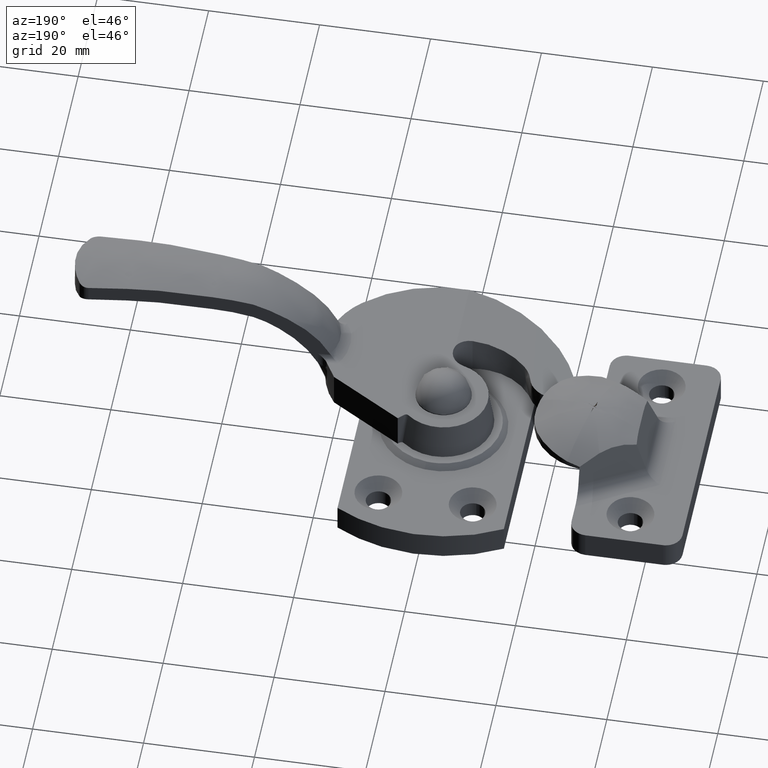
[diagram: clean part render]
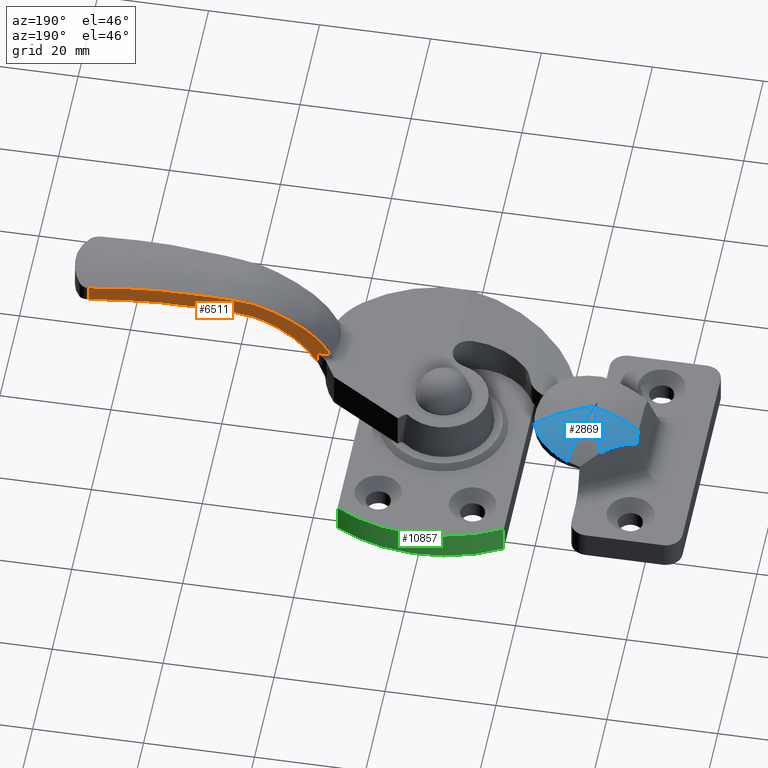
[diagram: same view with three faces highlighted in distinct colors, each labeled with its STEP entity id]
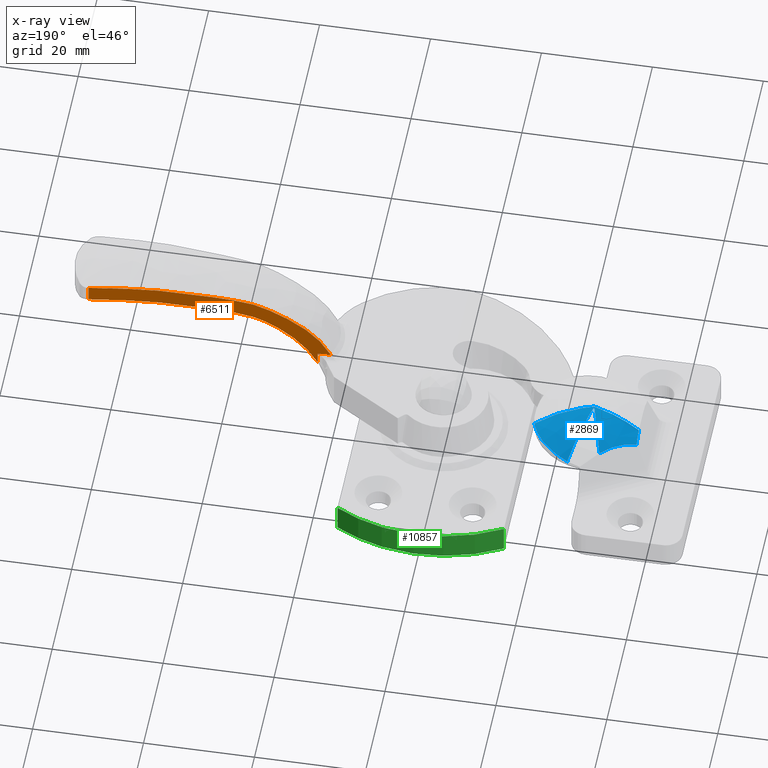
[diagram: x-ray of the same camera — body ghosted, the three highlighted faces saturated]
A machine part, auxiliary view with three faces highlighted in distinct colors.
The next image is the same camera in x-ray (body ghosted, the three faces saturated) — at least one of them is partly hidden behind the body in this view.
Their STEP definitions:

[orange] entity #6511 — the highlighted face is a freeform B-spline surface patch.
#4731=CARTESIAN_POINT('',(-64.544098295849992,3.056130984262790,22.335307416231998));
#4732=VERTEX_POINT('',#4731);
#4751=CARTESIAN_POINT('',(-64.544098295849992,3.056130984262790,25.240552649991500));
#4752=VERTEX_POINT('',#4751);
#4753=CARTESIAN_POINT('',(-64.544098295849992,3.056130984262790,25.240552649991500));
#4754=CARTESIAN_POINT('',(-64.544098295849992,3.056130984262790,22.335307416231998));
#4755=QUASI_UNIFORM_CURVE('',1,(#4753,#4754),.UNSPECIFIED.,.F.,.U.);
#4756=EDGE_CURVE('',#4752,#4732,#4755,.T.);
#4942=CARTESIAN_POINT('',(-21.294990060552301,5.356656109721390,13.600000000000300));
#4943=VERTEX_POINT('',#4942);
#4973=CARTESIAN_POINT('',(-23.628802869014301,5.232514937266021,13.600000000000120));
#4974=VERTEX_POINT('',#4973);
#4975=CARTESIAN_POINT('',(-23.628802869014301,5.232514937266021,13.600000000000120));
#4976=CARTESIAN_POINT('',(-21.294990060552301,5.356656109721390,13.600000000000300));
#4977=QUASI_UNIFORM_CURVE('',1,(#4975,#4976),.UNSPECIFIED.,.F.,.U.);
#4978=EDGE_CURVE('',#4974,#4943,#4977,.T.);
#5301=CARTESIAN_POINT('',(-21.432751211222449,5.349328259471500,13.834116143274541));
#5302=VERTEX_POINT('',#5301);
#5338=CARTESIAN_POINT('',(-21.294990060552301,5.356656109721390,13.600000000000300));
#5339=CARTESIAN_POINT('',(-21.320498952374368,5.355299229799925,13.637150231054120));
#5340=CARTESIAN_POINT('',(-21.344910624181100,5.354000713676376,13.675415990220440));
#5341=CARTESIAN_POINT('',(-21.390957911613540,5.351551346600992,13.753584045904450));
#5342=CARTESIAN_POINT('',(-21.412580870877122,5.350401168871801,13.793446467238031));
#5343=CARTESIAN_POINT('',(-21.432751211222449,5.349328259471500,13.834116143274541));
#5344=B_SPLINE_CURVE_WITH_KNOTS('',3,(#5338,#5339,#5340,#5341,#5342,#5343),.UNSPECIFIED.,.F.,.U.,(4,2,4),(0.0,0.500000000000000,1.0),.UNSPECIFIED.);
#5345=EDGE_CURVE('',#4943,#5302,#5344,.T.);
#5416=CARTESIAN_POINT('',(-23.628846639430151,5.232512609010580,11.369820057790800));
#5417=VERTEX_POINT('',#5416);
#5418=CARTESIAN_POINT('',(-23.628846639430151,5.232512609010580,11.369820057790800));
#5419=CARTESIAN_POINT('',(-23.628802869014301,5.232514937266021,13.600000000000120));
#5420=QUASI_UNIFORM_CURVE('',1,(#5418,#5419),.UNSPECIFIED.,.F.,.U.);
#5421=EDGE_CURVE('',#5417,#4974,#5420,.T.);
#6198=CARTESIAN_POINT('',(-52.0,3.723382044072050,23.099999999999699));
#6199=VERTEX_POINT('',#6198);
#6200=CARTESIAN_POINT('',(-64.544098295849992,3.056130984262790,22.335307416231998));
#6201=CARTESIAN_POINT('',(-61.723036834008717,3.206190096189800,22.614947073720639));
#6202=CARTESIAN_POINT('',(-60.006375147837787,3.297503501300025,22.749871624268408));
#6203=CARTESIAN_POINT('',(-55.563189712271537,3.533847327766312,23.099092908067981));
#6204=CARTESIAN_POINT('',(-52.0,3.723382044072050,23.099999999999699));
#6205=B_SPLINE_CURVE_WITH_KNOTS('',2,(#6200,#6201,#6202,#6203,#6204),.UNSPECIFIED.,.F.,.U.,(3,2,3),(0.0,0.322009686741718,0.822009686741718),.UNSPECIFIED.);
#6206=EDGE_CURVE('',#4732,#6199,#6205,.T.);
#6268=CARTESIAN_POINT('',(-30.669493444000349,4.858003502711720,19.256115468632949));
#6269=VERTEX_POINT('',#6268);
#6270=CARTESIAN_POINT('',(-30.669493444000349,4.858003502711720,19.256115468632949));
#6271=CARTESIAN_POINT('',(-28.255405624991418,4.986414697978021,17.617674302440982));
#6272=CARTESIAN_POINT('',(-26.425387321331680,5.083757816932564,15.534139359646121));
#6273=CARTESIAN_POINT('',(-24.707705774190970,5.175125470925403,13.578503442287010));
#6274=CARTESIAN_POINT('',(-23.628846639430151,5.232512609010580,11.369820057790800));
#6275=B_SPLINE_CURVE_WITH_KNOTS('',2,(#6270,#6271,#6272,#6273,#6274),.UNSPECIFIED.,.F.,.U.,(3,2,3),(0.050480646505041,0.550480646505041,1.000000000000000),.UNSPECIFIED.);
#6276=EDGE_CURVE('',#6269,#5417,#6275,.T.);
#6278=CARTESIAN_POINT('',(-35.159835288962313,4.619151312279820,21.529036773812450));
#6279=VERTEX_POINT('',#6278);
#6280=CARTESIAN_POINT('',(-35.159835288962313,4.619151312279820,21.529036773812450));
#6281=CARTESIAN_POINT('',(-32.976669350221698,4.735279211791694,20.821774991816142));
#6282=CARTESIAN_POINT('',(-30.669493444000349,4.858003502711720,19.256115468632949));
#6283=QUASI_UNIFORM_CURVE('',2,(#6280,#6281,#6282),.UNSPECIFIED.,.F.,.U.);
#6284=EDGE_CURVE('',#6279,#6269,#6283,.T.);
#6286=CARTESIAN_POINT('',(-38.811311880026537,4.424920402429395,22.285201131640051));
#6287=VERTEX_POINT('',#6286);
#6288=CARTESIAN_POINT('',(-38.811311880026537,4.424920402429445,22.285201131640068));
#6289=CARTESIAN_POINT('',(-36.620485531659320,4.541455777737365,22.002060124550479));
#6290=CARTESIAN_POINT('',(-35.159835288962313,4.619151312279820,21.529036773812450));
#6291=QUASI_UNIFORM_CURVE('',2,(#6288,#6289,#6290),.UNSPECIFIED.,.F.,.U.);
#6292=EDGE_CURVE('',#6287,#6279,#6291,.T.);
#6294=CARTESIAN_POINT('',(-42.438739729215548,4.231968703577249,22.646418643501448));
#6295=VERTEX_POINT('',#6294);
#6296=CARTESIAN_POINT('',(-42.438739729215548,4.231968703577249,22.646418643501448));
#6297=CARTESIAN_POINT('',(-40.206181960088877,4.350723874527084,22.465430097365900));
#6298=CARTESIAN_POINT('',(-38.811311880026551,4.424920402429445,22.285201131640068));
#6299=QUASI_UNIFORM_CURVE('',2,(#6296,#6297,#6298),.UNSPECIFIED.,.F.,.U.);
#6300=EDGE_CURVE('',#6295,#6287,#6299,.T.);
#6302=CARTESIAN_POINT('',(-51.999999999999993,3.723382044071988,23.099999999999710));
#6303=CARTESIAN_POINT('',(-48.051873284572203,3.933392494643876,23.101431433225351));
#6304=CARTESIAN_POINT('',(-42.438739729215548,4.231968703577249,22.646418643501448));
#6305=QUASI_UNIFORM_CURVE('',2,(#6302,#6303,#6304),.UNSPECIFIED.,.F.,.U.);
#6306=EDGE_CURVE('',#6199,#6295,#6305,.T.);
#6420=CARTESIAN_POINT('',(-52.0,3.723382044071925,26.100000000000001));
#6421=VERTEX_POINT('',#6420);
#6422=CARTESIAN_POINT('',(-64.544098295849992,3.056130984262790,25.240552649991500));
#6423=CARTESIAN_POINT('',(-61.709817803424301,3.206893248537519,25.540883569339002));
#6424=CARTESIAN_POINT('',(-59.988553667178628,3.298451469147228,25.688626997781110));
#6425=CARTESIAN_POINT('',(-55.542491826189973,3.534948298605101,26.070251413012389));
#6426=CARTESIAN_POINT('',(-52.0,3.723382044071925,26.100000000000001));
#6427=B_SPLINE_CURVE_WITH_KNOTS('',2,(#6422,#6423,#6424,#6425,#6426),.UNSPECIFIED.,.F.,.U.,(3,2,3),(0.177471127821122,0.500000000000000,1.0),.UNSPECIFIED.);
#6428=EDGE_CURVE('',#4752,#6421,#6427,.T.);
#6430=CARTESIAN_POINT('',(-42.438739729213751,4.231968703577235,25.659559201621850));
#6431=VERTEX_POINT('',#6430);
#6432=CARTESIAN_POINT('',(-52.0,3.723382044071925,26.100000000000001));
#6433=CARTESIAN_POINT('',(-47.619026071708070,3.956416689344773,26.137261221304321));
#6434=CARTESIAN_POINT('',(-42.438739729213751,4.231968703577235,25.659559201621850));
#6435=QUASI_UNIFORM_CURVE('',2,(#6432,#6433,#6434),.UNSPECIFIED.,.F.,.U.);
#6436=EDGE_CURVE('',#6421,#6431,#6435,.T.);
#6438=CARTESIAN_POINT('',(-38.811311880028200,4.424920402429180,25.310353361521798));
#6439=VERTEX_POINT('',#6438);
#6440=CARTESIAN_POINT('',(-42.438739729213751,4.231968703577235,25.659559201621850));
#6441=CARTESIAN_POINT('',(-38.811311880028200,4.424920402429180,25.310353361521798));
#6442=QUASI_UNIFORM_CURVE('',1,(#6440,#6441),.UNSPECIFIED.,.F.,.U.);
#6443=EDGE_CURVE('',#6431,#6439,#6442,.T.);
#6445=CARTESIAN_POINT('',(-35.159835288962000,4.619151312312740,24.694953307694199));
#6446=VERTEX_POINT('',#6445);
#6447=CARTESIAN_POINT('',(-38.811311880028200,4.424920402429180,25.310353361521798));
#6448=CARTESIAN_POINT('',(-37.568822375685762,4.491011437353769,25.199022911464869));
#6449=CARTESIAN_POINT('',(-37.072670470181770,4.517402962433216,25.126615199944730));
#6450=CARTESIAN_POINT('',(-36.087076033479207,4.569829124674756,24.982778933557480));
#6451=CARTESIAN_POINT('',(-35.159835288962000,4.619151312312740,24.694953307694199));
#6452=B_SPLINE_CURVE_WITH_KNOTS('',2,(#6447,#6448,#6449,#6450,#6451),.UNSPECIFIED.,.F.,.U.,(3,2,3),(0.0,0.500000000000000,1.0),.UNSPECIFIED.);
#6453=EDGE_CURVE('',#6439,#6446,#6452,.T.);
#6455=CARTESIAN_POINT('',(-29.003659364571849,4.946613263951490,21.751109821294850));
#6456=VERTEX_POINT('',#6455);
#6457=CARTESIAN_POINT('',(-35.159835288962000,4.619151312312740,24.694953307694199));
#6458=CARTESIAN_POINT('',(-33.834530617240432,4.689647487127513,24.283443886962129));
#6459=CARTESIAN_POINT('',(-32.131443045947513,4.780238852094014,23.460756258328939));
#6460=CARTESIAN_POINT('',(-30.530245544534498,4.865410436737681,22.687287296653139));
#6461=CARTESIAN_POINT('',(-29.003659364571849,4.946613263951490,21.751109821294850));
#6462=B_SPLINE_CURVE_WITH_KNOTS('',2,(#6457,#6458,#6459,#6460,#6461),.UNSPECIFIED.,.F.,.U.,(3,2,3),(0.0,0.500000000000000,1.0),.UNSPECIFIED.);
#6463=EDGE_CURVE('',#6446,#6456,#6462,.T.);
#6465=CARTESIAN_POINT('',(-29.003659364571849,4.946613263951490,21.751109821294850));
#6466=CARTESIAN_POINT('',(-27.366581748642840,5.033693399043764,20.747114283722180));
#6467=CARTESIAN_POINT('',(-26.096849307083389,5.101233551976151,19.703614224017951));
#6468=CARTESIAN_POINT('',(-24.825659929037020,5.168851202899388,18.658916814965671));
#6469=CARTESIAN_POINT('',(-23.831216648098788,5.221748056660686,17.499037689295839));
#6470=CARTESIAN_POINT('',(-22.854470051146581,5.273703580812931,16.359799272595989));
#6471=CARTESIAN_POINT('',(-22.073205185430052,5.315260956827022,15.024653172620500));
#6472=CARTESIAN_POINT('',(-21.741530296825470,5.332903549838716,14.457835882591640));
#6473=CARTESIAN_POINT('',(-21.432751211222449,5.349328259471500,13.834116143274541));
#6474=B_SPLINE_CURVE_WITH_KNOTS('',2,(#6465,#6466,#6467,#6468,#6469,#6470,#6471,#6472,#6473),.UNSPECIFIED.,.F.,.U.,(3,2,2,2,3),(0.0,0.250000000000000,0.500000000000000,0.750000000000000,0.860469404966954),.UNSPECIFIED.);
#6475=EDGE_CURVE('',#6456,#5302,#6474,.T.);
#6488=CARTESIAN_POINT('',(-66.704390762386438,2.941219780303619,10.633912538750771));
#6489=CARTESIAN_POINT('',(-19.134696047307429,5.471567395957210,10.633912538750771));
#6490=CARTESIAN_POINT('',(-66.704390762386254,2.941219780300165,26.838603106249849));
#6491=CARTESIAN_POINT('',(-19.134696047307241,5.471567395953755,26.838603106249849));
#6492=B_SPLINE_SURFACE_WITH_KNOTS('',1,1,((#6488,#6490),(#6489,#6491)),.UNSPECIFIED.,.F.,.F.,.U.,(2,2),(2,2),(0.0,47.636944846850326),(0.0,16.204690567499082),.UNSPECIFIED.);
#6493=ORIENTED_EDGE('',*,*,#6428,.F.);
#6494=ORIENTED_EDGE('',*,*,#4756,.T.);
#6495=ORIENTED_EDGE('',*,*,#6206,.T.);
#6496=ORIENTED_EDGE('',*,*,#6306,.T.);
#6497=ORIENTED_EDGE('',*,*,#6300,.T.);
#6498=ORIENTED_EDGE('',*,*,#6292,.T.);
#6499=ORIENTED_EDGE('',*,*,#6284,.T.);
#6500=ORIENTED_EDGE('',*,*,#6276,.T.);
#6501=ORIENTED_EDGE('',*,*,#5421,.T.);
#6502=ORIENTED_EDGE('',*,*,#4978,.T.);
#6503=ORIENTED_EDGE('',*,*,#5345,.T.);
#6504=ORIENTED_EDGE('',*,*,#6475,.F.);
#6505=ORIENTED_EDGE('',*,*,#6463,.F.);
#6506=ORIENTED_EDGE('',*,*,#6453,.F.);
#6507=ORIENTED_EDGE('',*,*,#6443,.F.);
#6508=ORIENTED_EDGE('',*,*,#6436,.F.);
#6509=EDGE_LOOP('',(#6493,#6494,#6495,#6496,#6497,#6498,#6499,#6500,#6501,#6502,#6503,#6504,#6505,#6506,#6507,#6508));
#6510=FACE_OUTER_BOUND('',#6509,.T.);
#6511=ADVANCED_FACE('',(#6510),#6492,.T.);

[blue] entity #2869 — the highlighted face is a freeform B-spline surface patch.
#2413=CARTESIAN_POINT('',(18.365678131114400,-2.861039895896485,11.261993442719840));
#2414=VERTEX_POINT('',#2413);
#2509=CARTESIAN_POINT('',(25.677245148327948,-10.757284593454481,10.931948783105540));
#2510=VERTEX_POINT('',#2509);
#2520=CARTESIAN_POINT('',(18.365678131114400,-2.861039895896485,11.261993442719840));
#2521=CARTESIAN_POINT('',(18.483304585026669,-3.313673338012683,11.344063364204001));
#2522=CARTESIAN_POINT('',(18.627923176603961,-3.755949839157150,11.415053971642720));
#2523=CARTESIAN_POINT('',(18.970181074875189,-4.620243388056480,11.534596392387080));
#2524=CARTESIAN_POINT('',(19.167818673293560,-5.042259855563519,11.583158763522460));
#2525=CARTESIAN_POINT('',(19.505158622210999,-5.659703165067709,11.638377848142930));
#2526=CARTESIAN_POINT('',(19.624438315107000,-5.862913278894749,11.653839655628280));
#2527=CARTESIAN_POINT('',(19.813937464525260,-6.163700885495896,11.672435723474189));
#2528=CARTESIAN_POINT('',(19.878692407391370,-6.263002050292724,11.677847673356800));
#2529=CARTESIAN_POINT('',(20.010801978881130,-6.458860684491447,11.687060912507709));
#2530=CARTESIAN_POINT('',(20.078238655109139,-6.555549162315573,11.690870468515440));
#2531=CARTESIAN_POINT('',(20.422252280941908,-7.032858092294906,11.705962417226869));
#2532=CARTESIAN_POINT('',(20.719241508093660,-7.395148690099556,11.705425706607191));
#2533=CARTESIAN_POINT('',(21.356042114928709,-8.081265642669111,11.679106791051700));
#2534=CARTESIAN_POINT('',(21.695851542366398,-8.405093836288529,11.653329319455230));
#2535=CARTESIAN_POINT('',(22.148161520774369,-8.785125949970238,11.604511735195720));
#2536=CARTESIAN_POINT('',(22.239975216304341,-8.859852609939139,11.593914980365071));
#2537=CARTESIAN_POINT('',(22.424955578483932,-9.005692431042686,11.571213610549600));
#2538=CARTESIAN_POINT('',(22.518294114345359,-9.076952472959956,11.559091152045770));
#2539=CARTESIAN_POINT('',(22.800810247663659,-9.285834981114952,11.520431917131649));
#2540=CARTESIAN_POINT('',(22.992485922409610,-9.418564651897620,11.491605613234899));
#2541=CARTESIAN_POINT('',(23.577245447655041,-9.797648625366325,11.396065339295379));
#2542=CARTESIAN_POINT('',(23.980027374858121,-10.024965897628960,11.320323490414101));
#2543=CARTESIAN_POINT('',(24.603231411708681,-10.328402603739930,11.188393704987160));
#2544=CARTESIAN_POINT('',(24.814146710960070,-10.423274328456669,11.141355755081570));
#2545=CARTESIAN_POINT('',(25.135321481800549,-10.556087032101960,11.066100352625581));
#2546=CARTESIAN_POINT('',(25.243143796122759,-10.598754354630220,11.040238724301821));
#2547=CARTESIAN_POINT('',(25.459500701526672,-10.680578140359369,10.987152981929290));
#2548=CARTESIAN_POINT('',(25.568143183349552,-10.719780139081371,10.959903870999980));
#2549=CARTESIAN_POINT('',(25.677245148327948,-10.757284593454481,10.931948783105540));
#2550=B_SPLINE_CURVE_WITH_KNOTS('',3,(#2520,#2521,#2522,#2523,#2524,#2525,#2526,#2527,#2528,#2529,#2530,#2531,#2532,#2533,#2534,#2535,#2536,#2537,#2538,#2539,#2540,#2541,#2542,#2543,#2544,#2545,#2546,#2547,#2548,#2549),.UNSPECIFIED.,.F.,.U.,(4,2,2,2,2,2,2,2,2,2,2,2,2,2,4),(0.0,0.125000000000002,0.250000000000004,0.312500000000004,0.343750000000005,0.375000000000005,0.500000000000004,0.625000000000004,0.656250000000004,0.687500000000004,0.750000000000003,0.875000000000001,0.937500000000001,0.968750000000000,1.0),.UNSPECIFIED.);
#2551=EDGE_CURVE('',#2414,#2510,#2550,.T.);
#2556=CARTESIAN_POINT('',(39.356068860886921,-2.918670709395978,10.981369482162691));
#2557=CARTESIAN_POINT('',(38.504402206636072,-2.686442129324026,11.610141535423942));
#2558=CARTESIAN_POINT('',(37.608628151692329,-2.441966091733165,12.153902050780300));
#2559=CARTESIAN_POINT('',(35.796796010955084,-1.947420540586837,13.058053961696274));
#2560=CARTESIAN_POINT('',(34.875461591860180,-1.695861769219113,13.423118418207153));
#2561=CARTESIAN_POINT('',(33.005305967205700,-1.185241438298749,13.996342818822979));
#2562=CARTESIAN_POINT('',(32.056481386319824,-0.926129731835283,14.204333260063857));
#2563=CARTESIAN_POINT('',(30.613260765059771,-0.532048773469537,14.400879748070006));
#2564=CARTESIAN_POINT('',(30.128947832654209,-0.399791467991105,14.446958982186283));
#2565=CARTESIAN_POINT('',(29.402279621039739,-0.201493929107548,14.486545257097466));
#2566=CARTESIAN_POINT('',(29.160415580751188,-0.135225535146700,14.494841257900120));
#2567=CARTESIAN_POINT('',(28.855833742190690,-0.052976652184393,14.499095355866665));
#2568=CARTESIAN_POINT('',(28.796152241929533,-0.036129004742633,14.499641158792198));
#2569=CARTESIAN_POINT('',(28.715269227655863,-0.016971397066738,14.499938091133245));
#2570=CARTESIAN_POINT('',(28.698928066714526,-0.012791809665196,14.499980103392616));
#2571=CARTESIAN_POINT('',(28.658421463346578,-0.009145786198884,14.500010055081452));
#2572=CARTESIAN_POINT('',(28.637201671057671,-0.012549079495257,14.499985912058227));
#2573=CARTESIAN_POINT('',(28.586467311006629,-0.023147403066431,14.499858866564457));
#2574=CARTESIAN_POINT('',(28.556420395838167,-0.031423989302747,14.499696370555389));
#2575=CARTESIAN_POINT('',(28.403273821769545,-0.071785055274154,14.498508836016322));
#2576=CARTESIAN_POINT('',(28.283376305734393,-0.104800161390009,14.496350334397004));
#2577=CARTESIAN_POINT('',(27.198605586968217,-0.400204208983833,14.466054671744278));
#2578=CARTESIAN_POINT('',(26.238207345726863,-0.662927056929827,14.361833852670749));
#2579=CARTESIAN_POINT('',(24.337649920608865,-1.181884527959572,13.998776644171944));
#2580=CARTESIAN_POINT('',(23.396203276451406,-1.438970178549820,13.740122662836320));
#2581=CARTESIAN_POINT('',(21.532694441689213,-1.947738492681332,13.056299472250879));
#2582=CARTESIAN_POINT('',(20.625797316278462,-2.195326666604676,12.636703568188889));
#2583=CARTESIAN_POINT('',(18.866040826449385,-2.675579383429279,11.632786658964088));
#2584=CARTESIAN_POINT('',(18.012838182815820,-2.908386454568382,11.048656692166569));
#2585=CARTESIAN_POINT('',(17.191237847099544,-3.132339966430002,10.368876279927084));
#2586=CARTESIAN_POINT('',(39.342056381247488,-2.940258515172161,10.991672236613844));
#2587=CARTESIAN_POINT('',(38.490540051831410,-2.705902718509498,11.619044587288224));
#2588=CARTESIAN_POINT('',(37.595326040026727,-2.459410656281061,12.161374725575380));
#2589=CARTESIAN_POINT('',(35.785219876822623,-1.960980488331799,13.062926393514054));
#2590=CARTESIAN_POINT('',(34.865053174458581,-1.707565412761062,13.426828012641071));
#2591=CARTESIAN_POINT('',(32.997648189393608,-1.193283923581825,13.998141439693402));
#2592=CARTESIAN_POINT('',(32.050400490742113,-0.932387967330464,14.205398050535043));
#2593=CARTESIAN_POINT('',(30.609713918335149,-0.535628873769223,14.401240500185892));
#2594=CARTESIAN_POINT('',(30.126273736280801,-0.402479362797100,14.447152355993943));
#2595=CARTESIAN_POINT('',(29.400929107968281,-0.202847479449967,14.486594416786941));
#2596=CARTESIAN_POINT('',(29.159507831190723,-0.136133851469144,14.494860109524742));
#2597=CARTESIAN_POINT('',(28.855484392969895,-0.053332484886704,14.499098662357399));
#2598=CARTESIAN_POINT('',(28.795912349031692,-0.036371674018864,14.499642470410132));
#2599=CARTESIAN_POINT('',(28.715177690442143,-0.017085389220608,14.499938317409843));
#2600=CARTESIAN_POINT('',(28.698866503222042,-0.012877728648319,14.499980176173857));
#2601=CARTESIAN_POINT('',(28.658434199613357,-0.009207215815014,14.500010018271736));
#2602=CARTESIAN_POINT('',(28.637253330082881,-0.012633368067965,14.499985963530781));
#2603=CARTESIAN_POINT('',(28.586612028884897,-0.023302877966710,14.499859382462668));
#2604=CARTESIAN_POINT('',(28.556620224837218,-0.031635056341387,14.499697480343174));
#2605=CARTESIAN_POINT('',(28.403754518829544,-0.072267223338509,14.498514286050368));
#2606=CARTESIAN_POINT('',(28.284076803364108,-0.105504103452301,14.496363672816408));
#2607=CARTESIAN_POINT('',(27.201291066007137,-0.402892122276070,14.466178586289599));
#2608=CARTESIAN_POINT('',(26.242626271137006,-0.667378492149221,14.362338436487256));
#2609=CARTESIAN_POINT('',(24.345276991473291,-1.189914932235394,14.000561278250041));
#2610=CARTESIAN_POINT('',(23.405296696627371,-1.448803456193650,13.742796371428932));
#2611=CARTESIAN_POINT('',(21.544258477398341,-1.961314840167070,13.061165215380752));
#2612=CARTESIAN_POINT('',(20.638340953646704,-2.210791712130206,12.642837905948589));
#2613=CARTESIAN_POINT('',(18.879865139995580,-2.694966279300708,11.641608812831311));
#2614=CARTESIAN_POINT('',(18.026972342648374,-2.929780477229209,11.058883638181007));
#2615=CARTESIAN_POINT('',(17.205267180320359,-3.155893447297413,10.380435480225117));
#2616=CARTESIAN_POINT('',(36.296936183277097,-7.631609731406014,13.230613985771168));
#2617=CARTESIAN_POINT('',(35.528927881161600,-6.863605369517671,13.521157724017325));
#2618=CARTESIAN_POINT('',(34.795914110943571,-6.130596353753456,13.733989321613160));
#2619=CARTESIAN_POINT('',(33.409331428408279,-4.744027301695967,14.062945427425980));
#2620=CARTESIAN_POINT('',(32.750523482440101,-4.085227723886476,14.180453398057908));
#2621=CARTESIAN_POINT('',(31.466557315533180,-2.801292946856137,14.357756470036533));
#2622=CARTESIAN_POINT('',(30.841646166273669,-2.176393742743517,14.417056032531768));
#2623=CARTESIAN_POINT('',(29.908528476949812,-1.243388301713696,14.472558533143218));
#2624=CARTESIAN_POINT('',(29.598303481881420,-0.933173962518816,14.485331839511762));
#2625=CARTESIAN_POINT('',(29.134579416908242,-0.469796184465505,14.496289745458126));
#2626=CARTESIAN_POINT('',(28.980521830894386,-0.315231603361764,14.498577188594895));
#2627=CARTESIAN_POINT('',(28.786609437927847,-0.123485672345071,14.499750544162744));
#2628=CARTESIAN_POINT('',(28.748617664084911,-0.084213719655722,14.499901054796116));
#2629=CARTESIAN_POINT('',(28.697131354270738,-0.039558661518941,14.499982927283616));
#2630=CARTESIAN_POINT('',(28.686729426572583,-0.029816424653882,14.499994524801874));
#2631=CARTESIAN_POINT('',(28.660945118201308,-0.021317889026746,14.500002761340765));
#2632=CARTESIAN_POINT('',(28.647437766071928,-0.029250630387972,14.499996111204617));
#2633=CARTESIAN_POINT('',(28.615142864987845,-0.053954439135782,14.499961090747604));
#2634=CARTESIAN_POINT('',(28.596016284951904,-0.073246683193859,14.499916273742569));
#2635=CARTESIAN_POINT('',(28.498526533040440,-0.167329253980752,14.499588789613790));
#2636=CARTESIAN_POINT('',(28.422191988426491,-0.244298417779983,14.498993572174209));
#2637=CARTESIAN_POINT('',(27.731226737284842,-0.933308153907831,14.490631109211158));
#2638=CARTESIAN_POINT('',(27.117175706471460,-1.548361943149220,14.462200609042306));
#2639=CARTESIAN_POINT('',(25.870093920220548,-2.795366959900406,14.357348346612584));
#2640=CARTESIAN_POINT('',(25.236476574714480,-3.428971512720334,14.281212201769319));
#2641=CARTESIAN_POINT('',(23.917679409325967,-4.747745815677409,14.059818011368556));
#2642=CARTESIAN_POINT('',(23.243153922613747,-5.422264586226342,13.916695088154119));
#2643=CARTESIAN_POINT('',(21.831348964696208,-6.834058566556458,13.525134121418647));
#2644=CARTESIAN_POINT('',(21.093701169545390,-7.571702373860441,13.277853179006796));
#2645=CARTESIAN_POINT('',(20.305166578331807,-8.360233526243524,12.934538193547052));
#2646=CARTESIAN_POINT('',(31.592195185674029,-10.685451984598098,10.985241823516549));
#2647=CARTESIAN_POINT('',(31.359159679907421,-9.833848677523610,11.613484012034943));
#2648=CARTESIAN_POINT('',(31.113918324343970,-8.938294430800518,12.156703033308448));
#2649=CARTESIAN_POINT('',(30.617895938647703,-7.127138064029313,13.059870398261042));
#2650=CARTESIAN_POINT('',(30.365630537819641,-6.206259463980098,13.424494511759148));
#2651=CARTESIAN_POINT('',(29.853609956145725,-4.337195882251995,13.996995205062500));
#2652=CARTESIAN_POINT('',(29.593817216005657,-3.388987844031008,14.204707717372264));
#2653=CARTESIAN_POINT('',(29.198673403062291,-1.946904096399490,14.400987550317918));
#2654=CARTESIAN_POINT('',(29.066073505140103,-1.462938753997041,14.447003388581171));
#2655=CARTESIAN_POINT('',(28.867121504257121,-0.737315947676165,14.486535040526395));
#2656=CARTESIAN_POINT('',(28.800902496058246,-0.494823835168087,14.494819565726006));
#2657=CARTESIAN_POINT('',(28.717512481909857,-0.193854791247659,14.499067770877593));
#2658=CARTESIAN_POINT('',(28.701172580875461,-0.132205048671031,14.499612862210636));
#2659=CARTESIAN_POINT('',(28.679028026807480,-0.062102579958999,14.499909329693738));
#2660=CARTESIAN_POINT('',(28.674554062736654,-0.046808426120308,14.499951374735296));
#2661=CARTESIAN_POINT('',(28.663463964159334,-0.033466715409372,14.499981124581160));
#2662=CARTESIAN_POINT('',(28.657654304195916,-0.045920215377042,14.499957068448039));
#2663=CARTESIAN_POINT('',(28.643763999450815,-0.084702128497963,14.499830279007549));
#2664=CARTESIAN_POINT('',(28.635537605643496,-0.114988224251739,14.499667951779047));
#2665=CARTESIAN_POINT('',(28.593608365224199,-0.262679425817955,14.498482074831884));
#2666=CARTESIAN_POINT('',(28.560782195748509,-0.383489895805635,14.496326549868247));
#2667=CARTESIAN_POINT('',(28.263785417912921,-1.464438167992050,14.466072771522393));
#2668=CARTESIAN_POINT('',(28.000825769537485,-2.425753475142524,14.361996132029729));
#2669=CARTESIAN_POINT('',(27.480479487367891,-4.324974173424559,13.999423733149520));
#2670=CARTESIAN_POINT('',(27.222705426224099,-5.265844848916826,13.741106463854203));
#2671=CARTESIAN_POINT('',(26.712509619885331,-7.128381176816179,13.058113375673578));
#2672=CARTESIAN_POINT('',(26.464203331368122,-8.034896377787012,12.638997828712554));
#2673=CARTESIAN_POINT('',(25.982460992606068,-9.794150023260327,11.636098534413408));
#2674=CARTESIAN_POINT('',(25.748892400577738,-10.647228866283534,11.052500323522784));
#2675=CARTESIAN_POINT('',(25.524120075883889,-11.468863328554546,10.373224174789300));
#2676=CARTESIAN_POINT('',(31.557226924732923,-10.708149844658202,10.968552964401967));
#2677=CARTESIAN_POINT('',(31.327632536791139,-9.856306349351405,11.599060308070117));
#2678=CARTESIAN_POINT('',(31.085653558529227,-8.959847668019050,12.144595027176559));
#2679=CARTESIAN_POINT('',(30.595920470101376,-7.145899011861384,13.051973728667964));
#2680=CARTESIAN_POINT('',(30.346661745620356,-6.223129575662353,13.418481819634851));
#2681=CARTESIAN_POINT('',(29.840573355189932,-4.349609773851774,13.994079362444078));
#2682=CARTESIAN_POINT('',(29.583672436315187,-3.398846166366687,14.202981337426943));
#2683=CARTESIAN_POINT('',(29.192870409067829,-1.952655267422647,14.400402464715533));
#2684=CARTESIAN_POINT('',(29.061716948920999,-1.467275131498909,14.446689651928654));
#2685=CARTESIAN_POINT('',(28.864929802591789,-0.739508156180016,14.486455104947625));
#2686=CARTESIAN_POINT('',(28.799430251054062,-0.496295858023019,14.494788766472114));
#2687=CARTESIAN_POINT('',(28.716946063043942,-0.194431638605651,14.499062173877487));
#2688=CARTESIAN_POINT('',(28.700783646211107,-0.132598461226775,14.499610499730093));
#2689=CARTESIAN_POINT('',(28.678879622173866,-0.062287386976530,14.499908726366893));
#2690=CARTESIAN_POINT('',(28.674454253320814,-0.046947720663220,14.499951021005996));
#2691=CARTESIAN_POINT('',(28.663484612803412,-0.033566307363774,14.499980947210355));
#2692=CARTESIAN_POINT('',(28.657738055850540,-0.046056866883398,14.499956748389000));
#2693=CARTESIAN_POINT('',(28.643998624800943,-0.084954186549385,14.499829206661854));
#2694=CARTESIAN_POINT('',(28.635861585165465,-0.115330404226524,14.499665916137793));
#2695=CARTESIAN_POINT('',(28.594387781008169,-0.263461041266773,14.498473002741552));
#2696=CARTESIAN_POINT('',(28.561918194674419,-0.384630823239041,14.496304688767568));
#2697=CARTESIAN_POINT('',(28.268146998680745,-1.468788048181596,14.465871642187272));
#2698=CARTESIAN_POINT('',(28.008041537131639,-2.432918136413490,14.361177875744533));
#2699=CARTESIAN_POINT('',(27.493496537210540,-4.337338276620926,13.996530561086612));
#2700=CARTESIAN_POINT('',(27.238643975580985,-5.280584890734787,13.736772370149376));
#2701=CARTESIAN_POINT('',(26.734511668064297,-7.147122513486454,13.050227546483514));
#2702=CARTESIAN_POINT('',(26.489263668029327,-8.055223117293190,12.629057117034664));
#2703=CARTESIAN_POINT('',(26.013868936605171,-9.816546524746983,11.621805804289512));
#2704=CARTESIAN_POINT('',(25.783547232800402,-10.670124135092419,11.035934037410001));
#2705=CARTESIAN_POINT('',(25.562267033362907,-11.491585272511763,10.354502732452300));
#2713=(BOUNDED_SURFACE()B_SPLINE_SURFACE(3,2,((#2556,#2586,#2616,#2646,#2676),(#2557,#2587,#2617,#2647,#2677),(#2558,#2588,#2618,#2648,#2678),(#2559,#2589,#2619,#2649,#2679),(#2560,#2590,#2620,#2650,#2680),(#2561,#2591,#2621,#2651,#2681),(#2562,#2592,#2622,#2652,#2682),(#2563,#2593,#2623,#2653,#2683),(#2564,#2594,#2624,#2654,#2684),(#2565,#2595,#2625,#2655,#2685),(#2566,#2596,#2626,#2656,#2686),(#2567,#2597,#2627,#2657,#2687),(#2568,#2598,#2628,#2658,#2688),(#2569,#2599,#2629,#2659,#2689),(#2570,#2600,#2630,#2660,#2690),(#2571,#2601,#2631,#2661,#2691),(#2572,#2602,#2632,#2662,#2692),(#2573,#2603,#2633,#2663,#2693),(#2574,#2604,#2634,#2664,#2694),(#2575,#2605,#2635,#2665,#2695),(#2576,#2606,#2636,#2666,#2696),(#2577,#2607,#2637,#2667,#2697),(#2578,#2608,#2638,#2668,#2698),(#2579,#2609,#2639,#2669,#2699),(#2580,#2610,#2640,#2670,#2700),(#2581,#2611,#2641,#2671,#2701),(#2582,#2612,#2642,#2672,#2702),(#2583,#2613,#2643,#2673,#2703),(#2584,#2614,#2644,#2674,#2704),(#2585,#2615,#2645,#2675,#2705)),.UNSPECIFIED.,.F.,.F.,.U.)B_SPLINE_SURFACE_WITH_KNOTS((4,2,2,2,2,2,2,2,2,2,2,2,2,2,4),(3,1,1,3),(0.0,3.891344884704375,7.782689769408774,11.674034654113180,13.619707096465371,14.592543317641450,14.835752372935470,14.896554636758969,14.957356900582480,15.078961428229491,15.565379538817551,19.456724423521919,23.348069308226329,27.239414192930720,31.130759077635101),(0.0,0.062964012536120,12.413171644436680,12.515251296694240),.UNSPECIFIED.)GEOMETRIC_REPRESENTATION_ITEM()RATIONAL_B_SPLINE_SURFACE(((1.000937600947190,1.000468800473595,0.908046152816132,1.000760037160835,1.001520074321670),(1.000780141756288,1.000390070878144,0.923488733608414,1.000632397745838,1.001264795491675),(1.000638376831641,1.000319188415820,0.937392122098060,1.000517480401569,1.001034960803138),(1.000398171342503,1.000199085671252,0.960949925561312,1.000322765263398,1.000645530526797),(1.000298620553318,1.000149310276659,0.970713224204798,1.000242067500242,1.000484135000483),(1.000140979741742,1.000070489870871,0.986173617180026,1.000114280860072,1.000228561720144),(1.000082871287379,1.000041435643690,0.991872519200817,1.000067177041750,1.000134354083500),(1.000027854125771,1.000013927062885,0.997268247187413,1.000022579084132,1.000045158168263),(1.000014910872651,1.000007455436325,0.998537637884010,1.000012087036973,1.000024174073947),(1.000003788575543,1.000001894287771,0.999628440972109,1.000003071091393,1.000006142182786),(1.000001456001559,1.000000728000780,0.999857204767890,1.000001180262557,1.000002360525114),(1.000000259960768,1.000000129980384,0.999974504726324,1.000000210729143,1.000000421458286),(1.000000106494895,1.000000053247448,0.999989555668285,1.000000086326788,1.000000172653575),(1.000000023016031,1.000000011508015,0.999997742736292,1.000000018657232,1.000000037314465),(1.000000011192197,1.000000005596099,0.999998902341536,1.000000009072608,1.000000018145216),(1.000000002790956,1.000000001395478,0.999999726281011,1.000000002262403,1.000000004524805),(1.000000009573033,1.000000004786517,0.999999061138719,1.000000007760083,1.000000015520165),(1.000000045281612,1.000000022640806,0.999995559071842,1.000000036706136,1.000000073412272),(1.000000090977812,1.000000045488906,0.999991077483645,1.000000073748345,1.000000147496689),(1.000000424862442,1.000000212431221,0.999958332234864,1.000000344401576,1.000000688803153),(1.000001031753999,1.000000515877000,0.999898812229410,1.000000836359415,1.000001672718831),(1.000009548228942,1.000004774114471,0.999063571354479,1.000007739975987,1.000015479951973),(1.000038909416065,1.000019454708033,0.996184015694972,1.000031540712714,1.000063081425428),(1.000140102136353,1.000070051068177,0.986259687050285,1.000113569456451,1.000227138912903),(1.000211919379427,1.000105959689714,0.979216315544965,1.000171785879642,1.000343571759283),(1.000398234983689,1.000199117491844,0.960943684044766,1.000322816852153,1.000645633704307),(1.000511255940722,1.000255627970361,0.949859318310295,1.000414433789568,1.000828867579136),(1.000773682558506,1.000386841279253,0.924122210022337,1.000627161797263,1.001254323594526),(1.000923139626262,1.000461569813131,0.909464425801686,1.000748314539039,1.001496629078078),(1.001088900552386,1.000544450276193,0.893207664419880,1.000882683498505,1.001765366997010)))REPRESENTATION_ITEM('')SURFACE());
#2714=CARTESIAN_POINT('',(37.107540000000000,-2.345069335652485,12.397474000000001));
#2715=VERTEX_POINT('',#2714);
#2716=CARTESIAN_POINT('',(18.365678131114400,-2.861039895896485,11.261993442719840));
#2717=CARTESIAN_POINT('',(19.048483461811561,-2.671373302434869,11.738398010021360));
#2718=CARTESIAN_POINT('',(19.757208718119969,-2.474506995718977,12.162795204696200));
#2719=CARTESIAN_POINT('',(20.857939462923071,-2.168752116404270,12.723862270577310));
#2720=CARTESIAN_POINT('',(21.231146868168299,-2.065084771795766,12.898249661867590));
#2721=CARTESIAN_POINT('',(21.800453135506739,-1.906946603830209,13.140779215345921));
#2722=CARTESIAN_POINT('',(21.991805807978981,-1.853793970743966,13.218444355501241));
#2723=CARTESIAN_POINT('',(22.377704286168040,-1.746601899061654,13.367367806066650));
#2724=CARTESIAN_POINT('',(22.572468734243280,-1.692501727712371,13.438693356275699));
#2725=CARTESIAN_POINT('',(23.548836031308191,-1.421294472270099,13.777286004575640));
#2726=CARTESIAN_POINT('',(24.341509823342470,-1.201112946448150,13.992179327204459));
#2727=CARTESIAN_POINT('',(25.547459336396109,-0.866146620765457,14.232644460818999));
#2728=CARTESIAN_POINT('',(25.952275770814801,-0.753705758278264,14.299104409939680));
#2729=CARTESIAN_POINT('',(26.563788706191040,-0.583864019618984,14.378076513474980));
#2730=CARTESIAN_POINT('',(26.768341681922010,-0.527053168525263,14.400944564320920));
#2731=CARTESIAN_POINT('',(27.178893626395350,-0.413039480278909,14.439702244454240));
#2732=CARTESIAN_POINT('',(27.384718883048631,-0.355883554081885,14.455569469651950));
#2733=CARTESIAN_POINT('',(27.796436381749530,-0.241588212994401,14.480197232309370));
#2734=CARTESIAN_POINT('',(28.002471235075809,-0.184374962232548,14.488972810514751));
#2735=CARTESIAN_POINT('',(28.311862458438430,-0.098725343511983,14.496824127700011));
#2736=CARTESIAN_POINT('',(28.414972520291290,-0.069976149141411,14.498555211072590));
#2737=CARTESIAN_POINT('',(28.544185081360538,-0.035211901179366,14.499610643214391));
#2738=CARTESIAN_POINT('',(28.570037779395019,-0.028271043973415,14.499766343741820));
#2739=CARTESIAN_POINT('',(28.609029074412039,-0.018759133267450,14.499916532877659));
#2740=CARTESIAN_POINT('',(28.622058680678311,-0.015699957209456,14.499952745322600));
#2741=CARTESIAN_POINT('',(28.648461001881518,-0.011127780354410,14.499996903499390));
#2742=CARTESIAN_POINT('',(28.661899662796269,-0.009901830586676,14.500004621502720));
#2743=CARTESIAN_POINT('',(28.688611654428470,-0.011782089764613,14.499989943767719));
#2744=CARTESIAN_POINT('',(28.701803245965522,-0.014408202229406,14.499967870074871));
#2745=CARTESIAN_POINT('',(28.727961854403329,-0.020186366736866,14.499895908124451));
#2746=CARTESIAN_POINT('',(28.740960781738220,-0.023429708408616,14.499845935869759));
#2747=CARTESIAN_POINT('',(28.779895324778501,-0.033378632003633,14.499654345396561));
#2748=CARTESIAN_POINT('',(28.805762420524630,-0.040353565943991,14.499471026784359));
#2749=CARTESIAN_POINT('',(28.935051117897039,-0.075375267479861,14.498276814006410));
#2750=CARTESIAN_POINT('',(29.038280852431090,-0.104092538042750,14.496432982303640));
#2751=CARTESIAN_POINT('',(29.244764319549699,-0.161269517355985,14.490968921879830));
#2752=CARTESIAN_POINT('',(29.347967238894292,-0.189896388600638,14.487348798387050));
#2753=CARTESIAN_POINT('',(29.657451699414860,-0.275765123522380,14.473825814955241));
#2754=CARTESIAN_POINT('',(29.863634510589389,-0.333013925074467,14.461258019634030));
#2755=CARTESIAN_POINT('',(30.275362576174331,-0.447341379796544,14.429042006548730));
#2756=CARTESIAN_POINT('',(30.481052245666501,-0.504464926267409,14.409380850073379));
#2757=CARTESIAN_POINT('',(30.891442811187549,-0.618442287520112,14.363012629049720));
#2758=CARTESIAN_POINT('',(31.095646589501200,-0.675158455481964,14.336365560087730));
#2759=CARTESIAN_POINT('',(31.705330291061529,-0.844497446553396,14.246194832091170));
#2760=CARTESIAN_POINT('',(32.107886068922468,-0.956311685862354,14.172453807495200));
#2761=CARTESIAN_POINT('',(33.304088520569607,-1.288573715539368,13.911161467627821));
#2762=CARTESIAN_POINT('',(34.086322060357361,-1.505855676259620,13.683722195752830));
#2763=CARTESIAN_POINT('',(35.620268138312802,-1.931943362399383,13.122166112987030));
#2764=CARTESIAN_POINT('',(36.371989342738622,-2.140752011798841,12.788079968555330));
#2765=CARTESIAN_POINT('',(37.107540000000000,-2.345069335652485,12.397474000000001));
#2766=B_SPLINE_CURVE_WITH_KNOTS('',3,(#2716,#2717,#2718,#2719,#2720,#2721,#2722,#2723,#2724,#2725,#2726,#2727,#2728,#2729,#2730,#2731,#2732,#2733,#2734,#2735,#2736,#2737,#2738,#2739,#2740,#2741,#2742,#2743,#2744,#2745,#2746,#2747,#2748,#2749,#2750,#2751,#2752,#2753,#2754,#2755,#2756,#2757,#2758,#2759,#2760,#2761,#2762,#2763,#2764,#2765),.UNSPECIFIED.,.F.,.U.,(4,2,2,2,2,2,2,2,2,2,2,2,2,2,2,2,2,2,2,2,2,2,2,2,4),(0.0,0.125000000000004,0.187500000000006,0.218750000000007,0.250000000000007,0.375000000000010,0.437500000000012,0.468750000000013,0.500000000000013,0.531250000000014,0.546875000000015,0.550781250000015,0.552734375000015,0.554687500000015,0.556640625000015,0.558593750000015,0.562500000000015,0.578125000000015,0.593750000000014,0.625000000000013,0.656250000000012,0.687500000000011,0.750000000000008,0.875000000000004,1.0),.UNSPECIFIED.);
#2767=EDGE_CURVE('',#2414,#2715,#2766,.T.);
#2768=ORIENTED_EDGE('',*,*,#2767,.F.);
#2769=ORIENTED_EDGE('',*,*,#2551,.T.);
#2770=CARTESIAN_POINT('',(31.142340583943351,-8.917181539820859,12.135991090361200));
#2771=VERTEX_POINT('',#2770);
#2772=CARTESIAN_POINT('',(31.142340583943351,-8.917181539820859,12.135991090361200));
#2773=CARTESIAN_POINT('',(30.934159168210311,-8.167736177205853,12.563398922415811));
#2774=CARTESIAN_POINT('',(30.718075541189130,-7.389844468048964,12.935993498668470));
#2775=CARTESIAN_POINT('',(30.437952981010280,-6.381421072691675,13.332254543729251));
#2776=CARTESIAN_POINT('',(30.381387530611690,-6.177789348556284,13.408063065169690));
#2777=CARTESIAN_POINT('',(30.267397975876200,-5.767435643890915,13.552400626301671));
#2778=CARTESIAN_POINT('',(30.210142179960581,-5.561319558519397,13.620722275191390));
#2779=CARTESIAN_POINT('',(30.037598439469178,-4.940178269454335,13.814246699786050));
#2780=CARTESIAN_POINT('',(29.921535201390569,-4.522363625431553,13.928023733174451));
#2781=CARTESIAN_POINT('',(29.745896894000619,-3.890093243587385,14.075961179244290));
#2782=CARTESIAN_POINT('',(29.687093289547651,-3.678410808475927,14.121481927011949));
#2783=CARTESIAN_POINT('',(29.568969042677800,-3.253189236567285,14.204917198523701));
#2784=CARTESIAN_POINT('',(29.509596065617050,-3.039461648189779,14.242857637439720));
#2785=CARTESIAN_POINT('',(29.331282748420929,-2.397591742300776,14.344878314702330));
#2786=CARTESIAN_POINT('',(29.212046905185129,-1.968386449945880,14.397277021350771));
#2787=CARTESIAN_POINT('',(29.032625709845799,-1.322665553515152,14.452649382627190));
#2788=CARTESIAN_POINT('',(28.972726259218650,-1.107105479441296,14.467232073631880));
#2789=CARTESIAN_POINT('',(28.852688945840601,-0.675359597758906,14.488635323863271));
#2790=CARTESIAN_POINT('',(28.792812858087270,-0.459100878909164,14.495455916976280));
#2791=CARTESIAN_POINT('',(28.724373786502380,-0.215718725429762,14.498738645566140));
#2792=CARTESIAN_POINT('',(28.716746875607299,-0.188677111281629,14.499042394956239));
#2793=CARTESIAN_POINT('',(28.701308012482631,-0.134634533879448,14.499527764380900));
#2794=CARTESIAN_POINT('',(28.693624605730768,-0.107584108442616,14.499709468112490));
#2795=CARTESIAN_POINT('',(28.683090367217460,-0.074060122713243,14.499859889738961));
#2796=CARTESIAN_POINT('',(28.680933366451971,-0.067373633348514,14.499886126890949));
#2797=CARTESIAN_POINT('',(28.677414017192390,-0.057447572637486,14.499919630988510));
#2798=CARTESIAN_POINT('',(28.676195178223900,-0.054155585428449,14.499929825102170));
#2799=CARTESIAN_POINT('',(28.673506639806590,-0.047663247317001,14.499948187461399));
#2800=CARTESIAN_POINT('',(28.672102232639730,-0.044396888565206,14.499956490613220));
#2801=CARTESIAN_POINT('',(28.669111489280649,-0.039960155277485,14.499966704756130));
#2802=CARTESIAN_POINT('',(28.667950798138861,-0.038392586445837,14.499970062943159));
#2803=CARTESIAN_POINT('',(28.664502727719711,-0.037376084280157,14.499972202365059));
#2804=CARTESIAN_POINT('',(28.662807501570690,-0.038672275967413,14.499969508035999));
#2805=CARTESIAN_POINT('',(28.659406313928809,-0.042737175317965,14.499960468751899));
#2806=CARTESIAN_POINT('',(28.657973642049260,-0.046030168251741,14.499952434686250));
#2807=CARTESIAN_POINT('',(28.653783546605780,-0.055718098231360,14.499925922232750));
#2808=CARTESIAN_POINT('',(28.651509627973589,-0.062406159476497,14.499904058481480));
#2809=CARTESIAN_POINT('',(28.640428270589439,-0.095814560150735,14.499775828968760));
#2810=CARTESIAN_POINT('',(28.632805825939570,-0.122942677844740,14.499611493101110));
#2811=CARTESIAN_POINT('',(28.593958529843160,-0.258290598053238,14.498483462390070));
#2812=CARTESIAN_POINT('',(28.563968163212650,-0.366873942680362,14.496598930381690));
#2813=CARTESIAN_POINT('',(28.473291139756672,-0.692279437371106,14.488002652313350));
#2814=CARTESIAN_POINT('',(28.413043777512978,-0.909110700183226,14.478349368932561));
#2815=CARTESIAN_POINT('',(28.232378773224411,-1.559138105697286,14.437614503797130));
#2816=CARTESIAN_POINT('',(28.112572621357629,-1.990397262596716,14.394859331807661));
#2817=CARTESIAN_POINT('',(27.874304468931900,-2.848057180779951,14.278533108891949));
#2818=CARTESIAN_POINT('',(27.755819778372938,-3.274573988171087,14.204954837944600));
#2819=CARTESIAN_POINT('',(27.579063986806599,-3.910860960523284,14.071355124017710));
#2820=CARTESIAN_POINT('',(27.520307552889761,-4.122374718385770,14.022946083454420));
#2821=CARTESIAN_POINT('',(27.403121315433051,-4.544228673372202,13.918312094591441));
#2822=CARTESIAN_POINT('',(27.344686100813099,-4.754588369211646,13.862065408884360));
#2823=CARTESIAN_POINT('',(27.170940674309591,-5.380053074353103,13.682653530994740));
#2824=CARTESIAN_POINT('',(27.056826738872392,-5.790853765893540,13.548525392877780));
#2825=CARTESIAN_POINT('',(26.719536814380529,-7.005073478501811,13.103392189663690));
#2826=CARTESIAN_POINT('',(26.501386946092051,-7.790402772045956,12.749856143810140));
#2827=CARTESIAN_POINT('',(26.184317658454852,-8.931839563112131,12.133603122604280));
#2828=CARTESIAN_POINT('',(26.080326871343772,-9.306202721190520,11.913806735910139));
#2829=CARTESIAN_POINT('',(25.875840314957770,-10.042347675710481,11.444634154713791));
#2830=CARTESIAN_POINT('',(25.775168186698561,-10.404764363619320,11.194710478331690));
#2831=CARTESIAN_POINT('',(25.677245148327948,-10.757284593454481,10.931948783105540));
#2832=B_SPLINE_CURVE_WITH_KNOTS('',3,(#2772,#2773,#2774,#2775,#2776,#2777,#2778,#2779,#2780,#2781,#2782,#2783,#2784,#2785,#2786,#2787,#2788,#2789,#2790,#2791,#2792,#2793,#2794,#2795,#2796,#2797,#2798,#2799,#2800,#2801,#2802,#2803,#2804,#2805,#2806,#2807,#2808,#2809,#2810,#2811,#2812,#2813,#2814,#2815,#2816,#2817,#2818,#2819,#2820,#2821,#2822,#2823,#2824,#2825,#2826,#2827,#2828,#2829,#2830,#2831),.UNSPECIFIED.,.F.,.U.,(4,2,2,2,2,2,2,2,2,2,2,2,2,2,2,2,2,2,2,2,2,2,2,2,2,2,2,2,2,4),(0.0,0.125000000000105,0.156250000000131,0.187500000000157,0.250000000000209,0.281250000000235,0.312500000000262,0.375000000000314,0.406250000000340,0.437500000000366,0.441406250000370,0.445312500000373,0.446289062500374,0.446777343750374,0.447265625000374,0.447509765625374,0.447753906250374,0.448242187500374,0.449218750000374,0.453125000000371,0.468750000000360,0.500000000000339,0.562500000000297,0.625000000000254,0.656250000000233,0.687500000000212,0.750000000000169,0.875000000000085,0.937500000000042,1.0),.UNSPECIFIED.);
#2833=EDGE_CURVE('',#2771,#2510,#2832,.T.);
#2834=ORIENTED_EDGE('',*,*,#2833,.F.);
#2835=CARTESIAN_POINT('',(37.265312976113648,-5.500599312462629,11.963996323787040));
#2836=VERTEX_POINT('',#2835);
#2837=CARTESIAN_POINT('',(37.265312976113648,-5.500599312462629,11.963996323787040));
#2838=CARTESIAN_POINT('',(37.136117455957049,-5.555110589664797,12.015923494508611));
#2839=CARTESIAN_POINT('',(37.006092531561293,-5.611040283431255,12.065248435576249));
#2840=CARTESIAN_POINT('',(36.744334766099747,-5.725820487112014,12.158539783000659));
#2841=CARTESIAN_POINT('',(36.612971309470552,-5.784513050896139,12.202363472301551));
#2842=CARTESIAN_POINT('',(36.219547643471472,-5.963553743407744,12.324652925868490));
#2843=CARTESIAN_POINT('',(35.957303086286103,-6.087231383874841,12.394258729374730));
#2844=CARTESIAN_POINT('',(35.170683429910348,-6.471256263863920,12.567203030364340));
#2845=CARTESIAN_POINT('',(34.646421484318978,-6.744497285316154,12.634939501540231));
#2846=CARTESIAN_POINT('',(33.991295870232918,-7.109045586139281,12.656111214993921));
#2847=CARTESIAN_POINT('',(33.859977913961721,-7.183290259299740,12.657134801299360));
#2848=CARTESIAN_POINT('',(33.599669522245819,-7.332827251925071,12.652669942591780));
#2849=CARTESIAN_POINT('',(33.470514169570471,-7.408205548490741,12.647202740635169));
#2850=CARTESIAN_POINT('',(33.086014764981350,-7.636151599387011,12.621193571308860));
#2851=CARTESIAN_POINT('',(32.833632179897769,-7.790527348459708,12.591060837407090));
#2852=CARTESIAN_POINT('',(32.088287330014531,-8.260860346094649,12.462438702674410));
#2853=CARTESIAN_POINT('',(31.607036127485880,-8.583967274272839,12.326022804410250));
#2854=CARTESIAN_POINT('',(31.142340583943351,-8.917181539820859,12.135991090361200));
#2855=B_SPLINE_CURVE_WITH_KNOTS('',3,(#2837,#2838,#2839,#2840,#2841,#2842,#2843,#2844,#2845,#2846,#2847,#2848,#2849,#2850,#2851,#2852,#2853,#2854),.UNSPECIFIED.,.F.,.U.,(4,2,2,2,2,2,2,2,4),(0.0,0.062499999999998,0.124999999999996,0.249999999999995,0.499999999999995,0.562499999999996,0.624999999999998,0.750000000000000,1.0),.UNSPECIFIED.);
#2856=EDGE_CURVE('',#2836,#2771,#2855,.T.);
#2857=ORIENTED_EDGE('',*,*,#2856,.F.);
#2858=CARTESIAN_POINT('',(37.107540000000000,-2.345069335652485,12.397474000000001));
#2859=CARTESIAN_POINT('',(37.107540037944709,-2.886414302589211,12.397474032962259));
#2860=CARTESIAN_POINT('',(37.121628918430297,-3.419495585367814,12.358765015915020));
#2861=CARTESIAN_POINT('',(37.174892445436527,-4.470944443745641,12.212424682593520));
#2862=CARTESIAN_POINT('',(37.214093807675283,-4.989296327308662,12.104719828275410));
#2863=CARTESIAN_POINT('',(37.265312976113648,-5.500599312462629,11.963996323787040));
#2864=B_SPLINE_CURVE_WITH_KNOTS('',3,(#2858,#2859,#2860,#2861,#2862,#2863),.UNSPECIFIED.,.F.,.U.,(4,2,4),(0.0,0.500000000000000,1.0),.UNSPECIFIED.);
#2865=EDGE_CURVE('',#2715,#2836,#2864,.T.);
#2866=ORIENTED_EDGE('',*,*,#2865,.F.);
#2867=EDGE_LOOP('',(#2768,#2769,#2834,#2857,#2866));
#2868=FACE_OUTER_BOUND('',#2867,.T.);
#2869=ADVANCED_FACE('',(#2868),#2713,.T.);

[green] entity #10857 — the highlighted face is a freeform B-spline surface patch.
#10782=CARTESIAN_POINT('',(15.0,-23.480762113533149,0.0));
#10783=VERTEX_POINT('',#10782);
#10790=CARTESIAN_POINT('',(15.0,-23.480762113533149,5.0));
#10791=VERTEX_POINT('',#10790);
#10797=CARTESIAN_POINT('',(15.0,-23.480762113533149,5.0));
#10798=CARTESIAN_POINT('',(15.0,-23.480762113533149,0.0));
#10799=QUASI_UNIFORM_CURVE('',1,(#10797,#10798),.UNSPECIFIED.,.F.,.U.);
#10800=EDGE_CURVE('',#10791,#10783,#10799,.T.);
#10805=CARTESIAN_POINT('',(-15.674956941478481,-23.079204930622751,5.125000000000001));
#10806=CARTESIAN_POINT('',(-15.674956941478481,-23.079204930622751,-0.128125000000001));
#10807=CARTESIAN_POINT('',(0.421653064248790,-32.943220228513546,5.125000000000002));
#10808=CARTESIAN_POINT('',(0.421653064248790,-32.943220228513546,-0.128125000000001));
#10809=CARTESIAN_POINT('',(16.279044593650056,-22.699061631694789,5.125000000000002));
#10810=CARTESIAN_POINT('',(16.279044593650056,-22.699061631694789,-0.128125000000001));
#10818=(BOUNDED_SURFACE()B_SPLINE_SURFACE(1,2,((#10805,#10807,#10809),(#10806,#10808,#10810)),.UNSPECIFIED.,.F.,.F.,.U.)B_SPLINE_SURFACE_WITH_KNOTS((2,2),(3,3),(0.0,5.253125000000002),(0.0,34.615178853236678),.UNSPECIFIED.)GEOMETRIC_REPRESENTATION_ITEM()RATIONAL_B_SPLINE_SURFACE(((1.0,0.842884116803237,0.991792998441053),(1.0,0.842884116803237,0.991792998441053)))REPRESENTATION_ITEM('')SURFACE());
#10819=CARTESIAN_POINT('',(-15.0,-23.480762113533199,0.0));
#10820=VERTEX_POINT('',#10819);
#10821=CARTESIAN_POINT('',(15.000000000000011,-23.480762113533149,0.0));
#10822=CARTESIAN_POINT('',(2.081668E-014,-32.141016151377542,0.0));
#10823=CARTESIAN_POINT('',(-14.999999999999980,-23.480762113533171,0.0));
#10831=(BOUNDED_CURVE()B_SPLINE_CURVE(2,(#10821,#10822,#10823),.UNSPECIFIED.,.F.,.U.)CURVE()GEOMETRIC_REPRESENTATION_ITEM()QUASI_UNIFORM_CURVE()RATIONAL_B_SPLINE_CURVE((1.0,0.866025403784439,1.0))REPRESENTATION_ITEM(''));
#10832=EDGE_CURVE('',#10783,#10820,#10831,.T.);
#10833=ORIENTED_EDGE('',*,*,#10832,.F.);
#10834=ORIENTED_EDGE('',*,*,#10800,.F.);
#10835=CARTESIAN_POINT('',(-15.0,-23.480762113533199,5.0));
#10836=VERTEX_POINT('',#10835);
#10837=CARTESIAN_POINT('',(15.000000000000011,-23.480762113533149,5.0));
#10838=CARTESIAN_POINT('',(2.081668E-014,-32.141016151377542,5.0));
#10839=CARTESIAN_POINT('',(-14.999999999999980,-23.480762113533171,5.0));
#10847=(BOUNDED_CURVE()B_SPLINE_CURVE(2,(#10837,#10838,#10839),.UNSPECIFIED.,.F.,.U.)CURVE()GEOMETRIC_REPRESENTATION_ITEM()QUASI_UNIFORM_CURVE()RATIONAL_B_SPLINE_CURVE((1.0,0.866025403784439,1.0))REPRESENTATION_ITEM(''));
#10848=EDGE_CURVE('',#10791,#10836,#10847,.T.);
#10849=ORIENTED_EDGE('',*,*,#10848,.T.);
#10850=CARTESIAN_POINT('',(-15.0,-23.480762113533199,5.0));
#10851=CARTESIAN_POINT('',(-15.0,-23.480762113533199,0.0));
#10852=QUASI_UNIFORM_CURVE('',1,(#10850,#10851),.UNSPECIFIED.,.F.,.U.);
#10853=EDGE_CURVE('',#10836,#10820,#10852,.T.);
#10854=ORIENTED_EDGE('',*,*,#10853,.T.);
#10855=EDGE_LOOP('',(#10833,#10834,#10849,#10854));
#10856=FACE_OUTER_BOUND('',#10855,.T.);
#10857=ADVANCED_FACE('',(#10856),#10818,.T.);